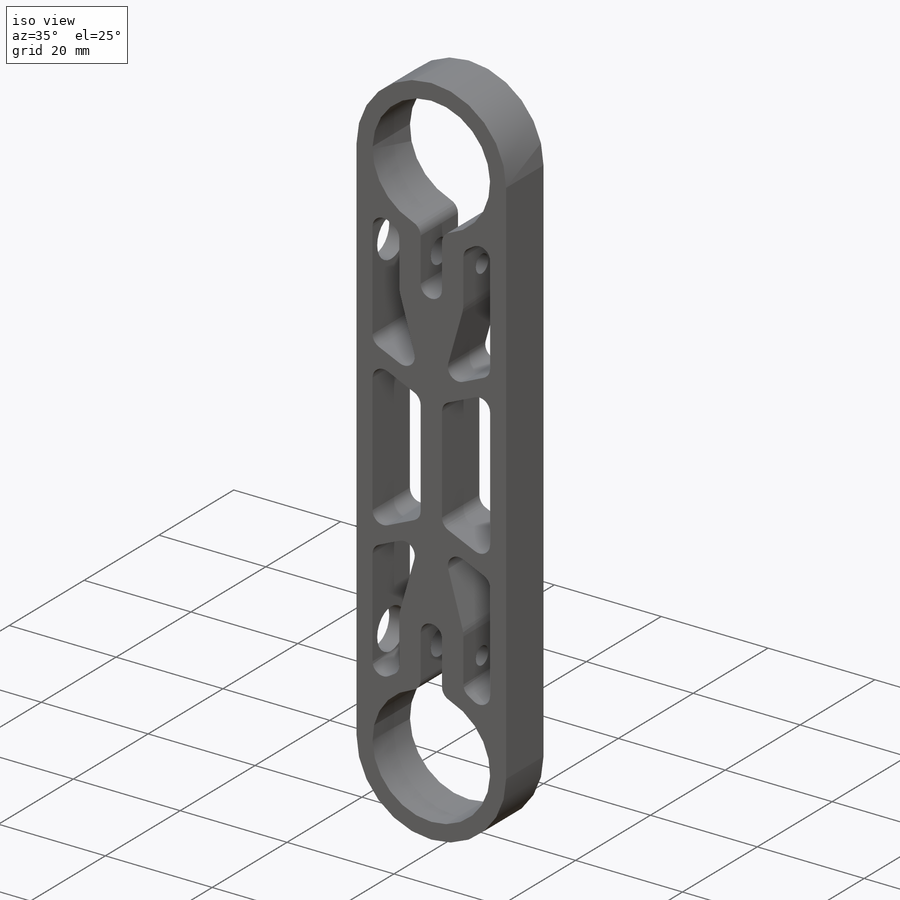
[diagram: iso view]
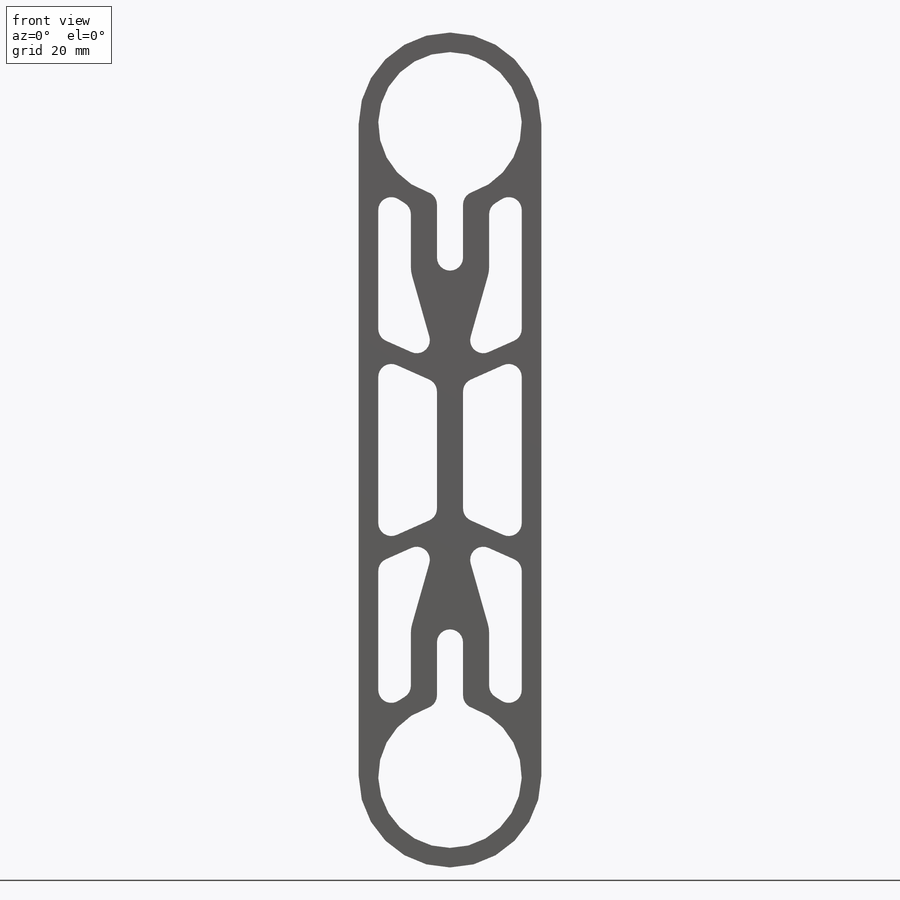
[diagram: front view]
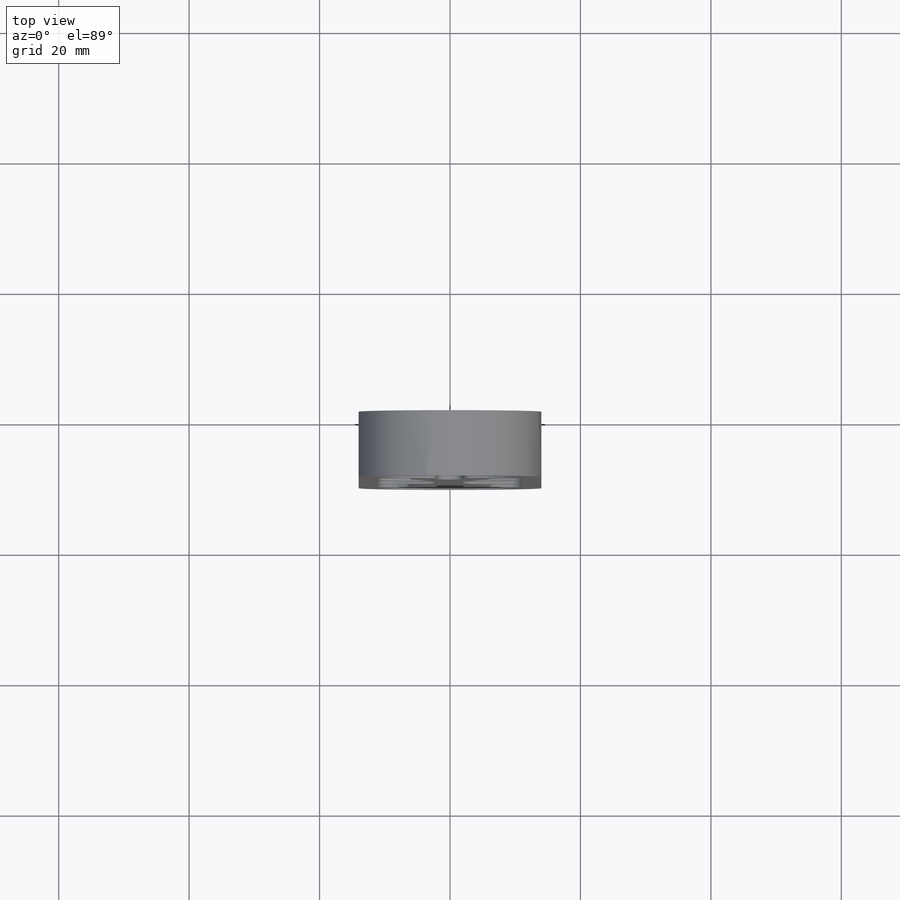
[diagram: top view]
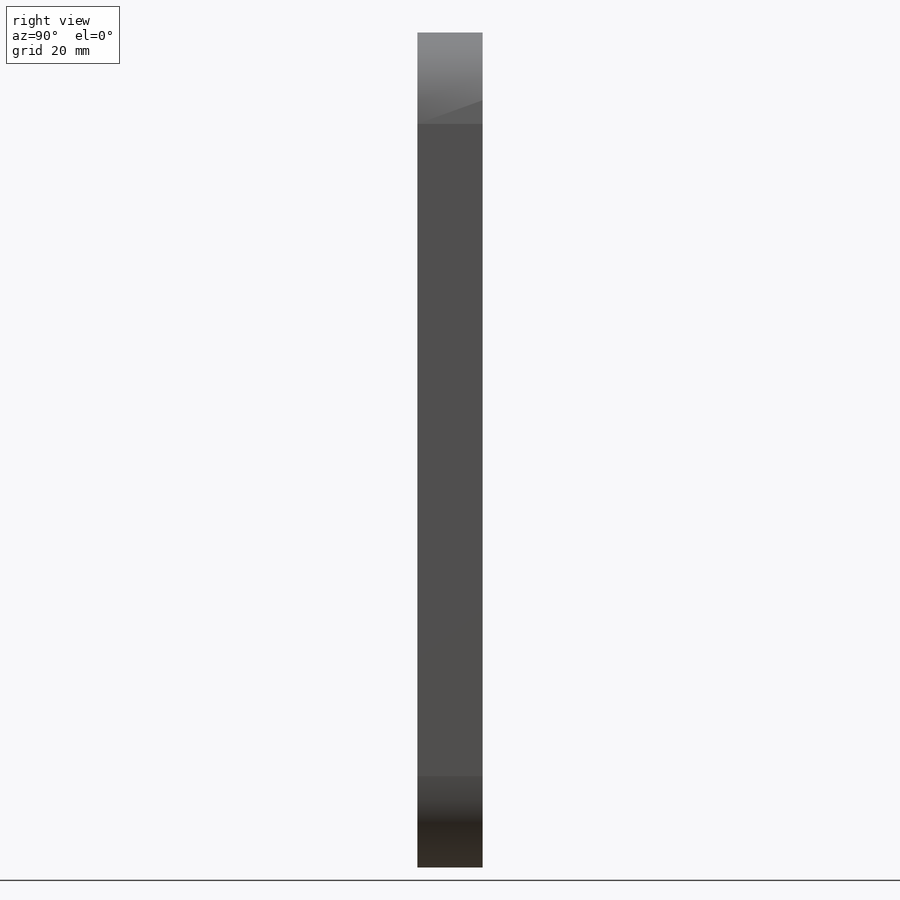
[diagram: right view]
SOLIDWORKS PART (.sldprt)
format: sldprt  version: not decoded by parser v0  size: 702,464 bytes
history: native  units: mm
features: sketch x18, cut_extrude x6, fillet x5, plane x4, hole x4, thread x3, material x1, extrude x1, mirror x1 (+8 scaffold rows collapsed)
feature tree (51):
  scaffold x8  (default folders/planes/origin — collapsed)
  material  "Сплав 2024"
  plane  "Спереди"
  plane  "Сверху"
  plane  "Справа"
  sketch  "Эскиз1"  dims[c1.D1=28.0mm c1.D2=28.0mm c1.D5=~106.609954mm c2.D1=~30.201431mm c2.D3=50.0mm c2.D4=50.0mm c2.D5=~151.29406mm]
  extrude  "Бобышка-Вытянуть1"  Depth=10mm
  sketch  "Эскиз2"  dims[D1=22.0mm D2=22.0mm]
  cut_extrude  "Вырез-Вытянуть1"  [1 undecoded]
  sketch  "Эскиз3"  dims[c1.D1=~14.905104mm c1.D2=~8.748648mm c2.D1=4.0mm c2.D2=4.0mm c2.D3=20.0mm c2.D4=28.0mm]
  cut_extrude  "Вырез-Вытянуть2"  [1 undecoded]
  fillet  "Скругление1"  Radius=2mm
  sketch  "Эскиз4"  dims[c1.D2=17.0mm c1.D1=6.0mm c1.D3=4.0mm c1.D4=4.0mm c1.D5=6.0mm c1.D6=6.0mm c1.D7=~4.571979mm c1.D8=~15.47151mm c2.D7=4.0mm c2.D8=4.0mm c2.D9=6.0mm c2.D3=4.0mm c3.D7=4.0mm c3.D8=4.0mm c3.D9=6.0mm c3.D10=6.0mm c4.D8=4.0mm c4.D9=4.0mm]
  cut_extrude  "Вырез-Вытянуть3"  [1 undecoded]
  sketch  "Эскиз8"  dims[D1=7.0mm D2=7.0mm]
  sketch  "Эскиз11"  dims[D1=15.0mm D2=15.0mm]
  hole  "Отверстие обработанное метчиком M4x0.71"  [1 undecoded]
  sketch  "Эскиз13"
  thread  "Отверстие резьбы3"  Diameter=6mm  [1 undecoded]
  thread  "Отверстие резьбы4"  Diameter=6mm  [1 undecoded]
  sketch  "Эскиз12"  dims[hole-wizard template sketch: 47 standard entries collapsed; hole parameters kept: c15.Глубина сверла=6.0mm c15.D3=~14.816244mm c15.Угол заточки сверла=118.0deg]
  fillet  "Скругление3"  Radius=2mm
  hole  "Отверстие с зазором M41"  [1 undecoded]
  sketch  "Эскиз15"
  sketch  "Эскиз14"  dims[hole-wizard template sketch: 50 standard entries collapsed; hole parameters above]
  sketch  "Эскиз16"  dims[c1.D1=~23.36267mm c1.D2=~9.704494mm c2.D1=4.0mm c2.D2=15.0mm c2.D3=15.0mm c2.D4=28.0mm]
  cut_extrude  "Вырез-Вытянуть4"  [1 undecoded]
  fillet  "Скругление4"  Radius=2mm
  sketch  "Эскиз18"  dims[c1.D5=14.0mm c1.D6=14.0mm c1.D1=3.0mm c1.D2=3.0mm c1.D3=4.0mm c1.D4=4.0mm c1.D7=~14.137542mm c2.D6=14.0mm c2.D7=20.0mm c3.D6=3.0mm c3.D7=3.0mm]
  cut_extrude  "Вырез-Вытянуть5"  [1 undecoded]
  fillet  "Скругление5"  Radius=2mm
  fillet  "Скругление6"  Radius=5mm
  sketch  "Эскиз20"  dims[D1=3.0mm]
  hole  "Отверстие с зазором M42"  [1 undecoded]
  sketch  "Эскиз22"
  sketch  "Эскиз21"  dims[hole-wizard template sketch: 60 standard entries collapsed; hole parameters kept: c18.Глубина сквозного отверстия=20.0mm]
  hole  "Отверстие обработанное метчиком M4x0.72"  [1 undecoded]
  sketch  "Эскиз24"
  sketch  "Эскиз23"  dims[hole-wizard template sketch: 60 standard entries collapsed; hole parameters kept: c18.Глубина проходного сверла=12.0mm]
  thread  "Отверстие резьбы5"  Diameter=4mm  [1 undecoded]
  sketch  "Эскиз25"  dims[D1=7.5mm]
  cut_extrude  "Вырез-Вытянуть6"  [1 undecoded]
  plane  "Плоскость1"
  mirror  "Зеркальное отражение1"
decode coverage: 23 of 38 modeling features carry decoded parameters
note: ~ marks probable driven/reference dimensions
note: 13 parameter values undecoded
summary: no parameter record found for 10 features
note: suppression state not decoded; provenance and decode notes live in map.json
